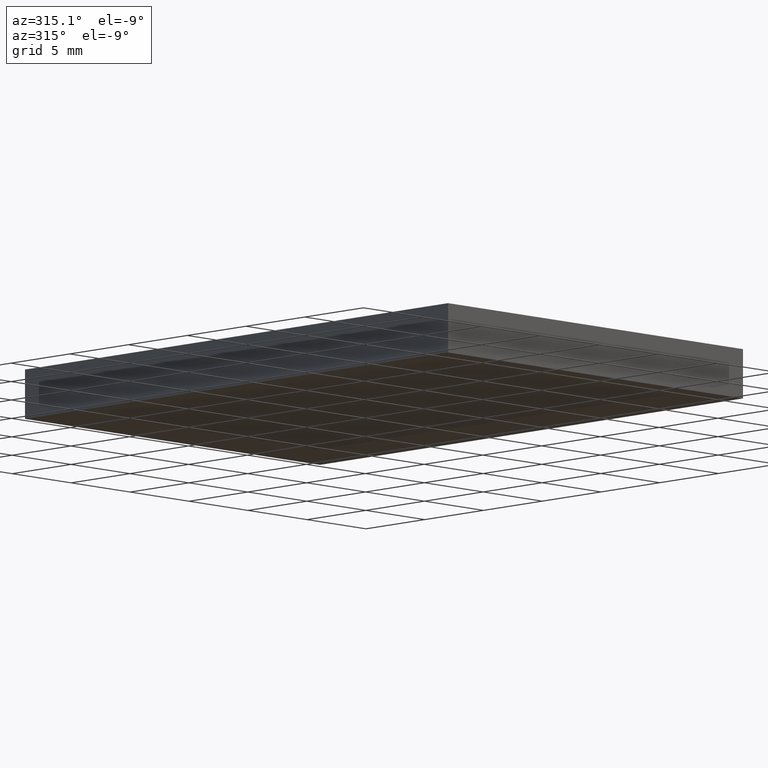
[diagram: clean part render]
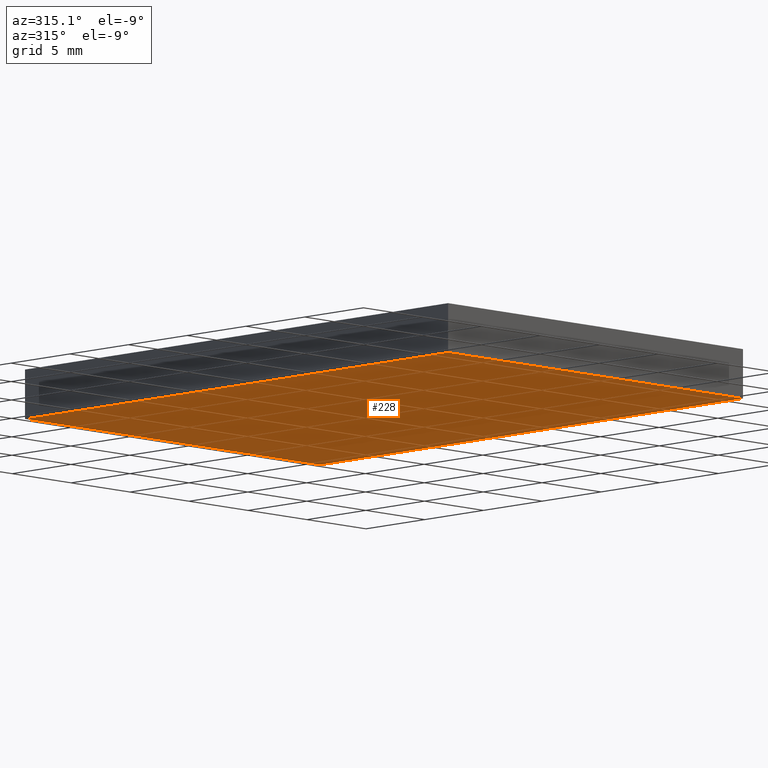
[diagram: same view with one face highlighted and labeled with its STEP entity id]
A machine part, auxiliary view. The second image highlights one B-rep face of the part: STEP entity #228.
In plain terms, the highlighted planar face has unit normal (-0, 0, 1).
Its self-contained STEP definition (entity closure, byte-faithful):
#10 = VERTEX_POINT ( 'NONE', #92 ) ;
#11 = AXIS2_PLACEMENT_3D ( 'NONE', #20, #292, #147 ) ;
#20 = CARTESIAN_POINT ( 'NONE',  ( 0.0000000000000000000, 0.0000000000000000000, 0.0000000000000000000 ) ) ;
#26 = CARTESIAN_POINT ( 'NONE',  ( 18.64837398373983700, 7.520325203252024700, 0.0000000000000000000 ) ) ;
#44 = VERTEX_POINT ( 'NONE', #165 ) ;
#90 = ORIENTED_EDGE ( 'NONE', *, *, #173, .F. ) ;
#92 = CARTESIAN_POINT ( 'NONE',  ( 18.64837398373984800, -28.47967479674797200, 0.0000000000000000000 ) ) ;
#97 = DIRECTION ( 'NONE',  ( -1.000000000000000000, -0.0000000000000000000, -0.0000000000000000000 ) ) ;
#103 = EDGE_LOOP ( 'NONE', ( #159, #236, #90, #116 ) ) ;
#116 = ORIENTED_EDGE ( 'NONE', *, *, #304, .F. ) ;
#134 = LINE ( 'NONE', #248, #205 ) ;
#137 = EDGE_CURVE ( 'NONE', #44, #190, #134, .T. ) ;
#147 = DIRECTION ( 'NONE',  ( 1.000000000000000000, 0.0000000000000000000, 0.0000000000000000000 ) ) ;
#154 = VECTOR ( 'NONE', #97, 1000.000000000000000 ) ;
#155 = VERTEX_POINT ( 'NONE', #172 ) ;
#159 = ORIENTED_EDGE ( 'NONE', *, *, #137, .F. ) ;
#161 = LINE ( 'NONE', #313, #154 ) ;
#165 = CARTESIAN_POINT ( 'NONE',  ( -6.351626016260162500, 7.520325203252024700, 0.0000000000000000000 ) ) ;
#172 = CARTESIAN_POINT ( 'NONE',  ( 18.64837398373983700, 7.520325203252024700, 0.0000000000000000000 ) ) ;
#173 = EDGE_CURVE ( 'NONE', #10, #155, #223, .T. ) ;
#176 = DIRECTION ( 'NONE',  ( 1.204669080539449300E-016, -1.000000000000000000, 0.0000000000000000000 ) ) ;
#177 = DIRECTION ( 'NONE',  ( 1.000000000000000000, 0.0000000000000000000, 0.0000000000000000000 ) ) ;
#190 = VERTEX_POINT ( 'NONE', #202 ) ;
#192 = LINE ( 'NONE', #201, #262 ) ;
#201 = CARTESIAN_POINT ( 'NONE',  ( -6.351626016260158100, -28.47967479674797200, 0.0000000000000000000 ) ) ;
#202 = CARTESIAN_POINT ( 'NONE',  ( -6.351626016260158100, -28.47967479674797200, 0.0000000000000000000 ) ) ;
#205 = VECTOR ( 'NONE', #176, 1000.000000000000000 ) ;
#223 = LINE ( 'NONE', #26, #301 ) ;
#228 = ADVANCED_FACE ( 'NONE', ( #309 ), #255, .F. ) ;
#230 = EDGE_CURVE ( 'NONE', #155, #44, #161, .T. ) ;
#236 = ORIENTED_EDGE ( 'NONE', *, *, #230, .F. ) ;
#248 = CARTESIAN_POINT ( 'NONE',  ( -6.351626016260162500, 7.520325203252024700, 0.0000000000000000000 ) ) ;
#255 = PLANE ( 'NONE',  #11 ) ;
#262 = VECTOR ( 'NONE', #177, 1000.000000000000000 ) ;
#292 = DIRECTION ( 'NONE',  ( -0.0000000000000000000, 0.0000000000000000000, 1.000000000000000000 ) ) ;
#301 = VECTOR ( 'NONE', #310, 1000.000000000000000 ) ;
#304 = EDGE_CURVE ( 'NONE', #190, #10, #192, .T. ) ;
#309 = FACE_OUTER_BOUND ( 'NONE', #103, .T. ) ;
#310 = DIRECTION ( 'NONE',  ( -2.891205793294678800E-016, 1.000000000000000000, -0.0000000000000000000 ) ) ;
#313 = CARTESIAN_POINT ( 'NONE',  ( -6.351626016260162500, 7.520325203252024700, 0.0000000000000000000 ) ) ;